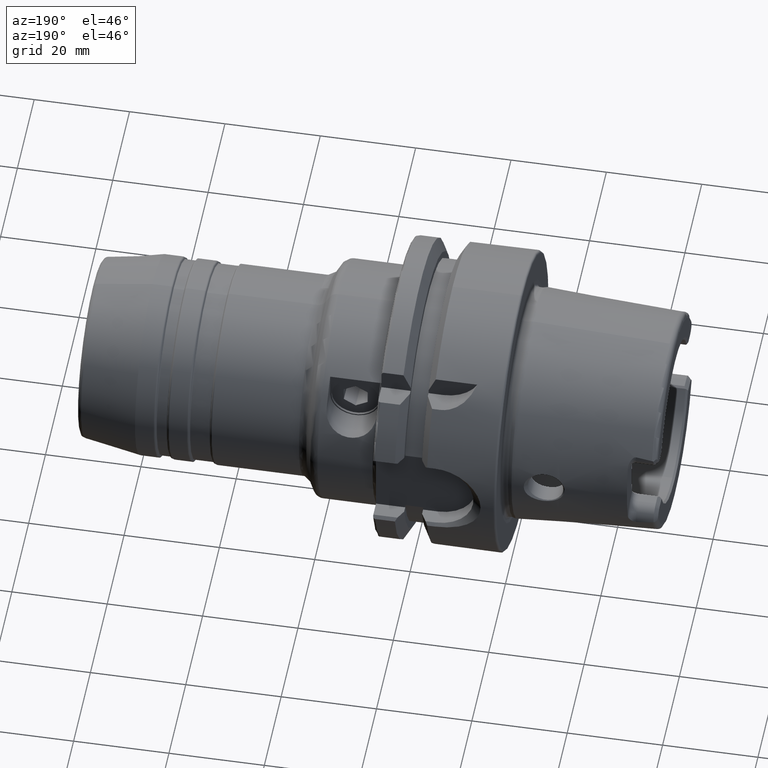
[diagram: clean part render]
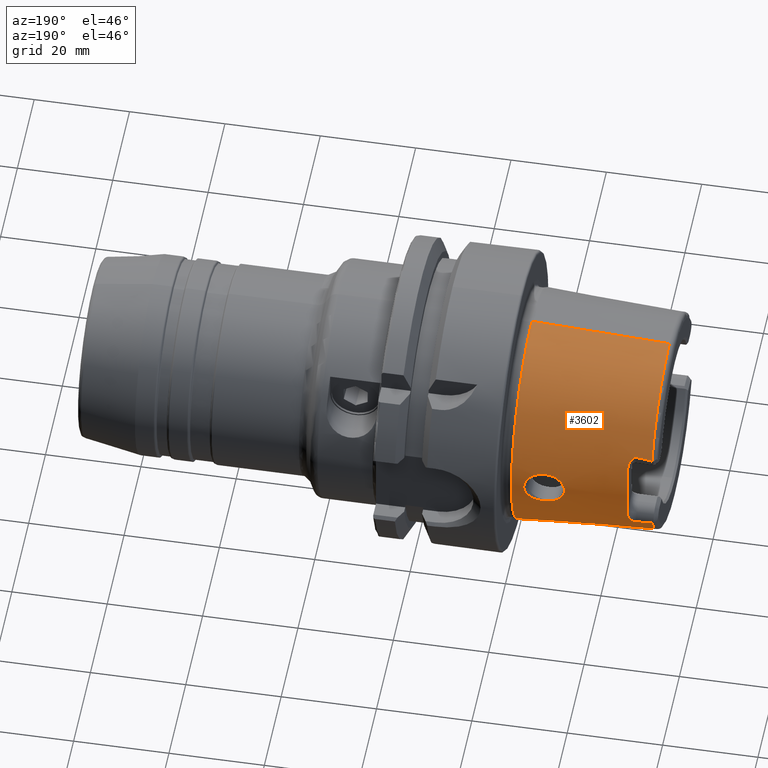
[diagram: same view with one face highlighted and labeled with its STEP entity id]
A machine part, auxiliary view. The second image highlights one B-rep face of the part: STEP entity #3602.
In plain terms, the highlighted conical surface has half-angle 2.868 deg.
Its self-contained STEP definition (entity closure, byte-faithful):
#2=CARTESIAN_POINT('',(-3.086004333271E1,0.E0,0.E0));
#3=DIRECTION('',(-1.E0,0.E0,0.E0));
#4=DIRECTION('',(0.E0,9.163649919573E-1,-4.003438540993E-1));
#5=AXIS2_PLACEMENT_3D('',#2,#3,#4);
#7=CARTESIAN_POINT('',(-2.000078966146E0,0.E0,0.E0));
#8=DIRECTION('',(-1.E0,0.E0,0.E0));
#9=DIRECTION('',(0.E0,0.E0,1.E0));
#10=AXIS2_PLACEMENT_3D('',#7,#8,#9);
#12=CARTESIAN_POINT('',(-3.086004333271E1,0.E0,0.E0));
#13=DIRECTION('',(-1.E0,0.E0,0.E0));
#14=DIRECTION('',(0.E0,0.E0,1.E0));
#15=AXIS2_PLACEMENT_3D('',#12,#13,#14);
#17=CARTESIAN_POINT('',(-3.086004333271E1,2.086981840766E1,9.117659021249E0));
#18=CARTESIAN_POINT('',(-3.053477016229E1,2.087026407252E1,9.157343468693E0));
#19=CARTESIAN_POINT('',(-2.990731725920E1,2.086951854295E1,9.237138009720E0));
#20=CARTESIAN_POINT('',(-2.903749175968E1,2.086333964170E1,9.358087934639E0));
#21=CARTESIAN_POINT('',(-2.823306039663E1,2.085177035668E1,9.481640423811E0));
#22=CARTESIAN_POINT('',(-2.773735868303E1,2.083999307163E1,9.567019157167E0));
#23=CARTESIAN_POINT('',(-2.75E1,2.083289994314E1,9.610781850025E0));
#25=CARTESIAN_POINT('',(-3.086004333271E1,2.086981840766E1,-9.117659021249E0));
#26=CARTESIAN_POINT('',(-3.053477016229E1,2.087026407252E1,-9.157343468693E0));
#27=CARTESIAN_POINT('',(-2.990731725920E1,2.086951854295E1,-9.237138009720E0));
#28=CARTESIAN_POINT('',(-2.903749175968E1,2.086333964170E1,-9.358087934639E0));
#29=CARTESIAN_POINT('',(-2.823306039663E1,2.085177035668E1,-9.481640423811E0));
#30=CARTESIAN_POINT('',(-2.773735868303E1,2.083999307163E1,-9.567019157167E0));
#31=CARTESIAN_POINT('',(-2.75E1,2.083289994314E1,-9.610781850025E0));
#33=CARTESIAN_POINT('',(-1.304439190524E1,2.366711362744E1,0.E0));
#34=CARTESIAN_POINT('',(-1.304439190524E1,2.366711362744E1,-2.692296203512E-1));
#35=CARTESIAN_POINT('',(-1.298596588633E1,2.366095548437E1,-7.915478808268E-1));
#36=CARTESIAN_POINT('',(-1.273593529021E1,2.363615494345E1,-1.538491121410E0));
#37=CARTESIAN_POINT('',(-1.234085581199E1,2.360161826823E1,-2.213541098239E0));
#38=CARTESIAN_POINT('',(-1.181419542757E1,2.356442533815E1,-2.805250832799E0));
#39=CARTESIAN_POINT('',(-1.117137997799E1,2.353291472613E1,-3.293080560877E0));
#40=CARTESIAN_POINT('',(-1.044411763446E1,2.351584278645E1,-3.653416998785E0));
#41=CARTESIAN_POINT('',(-9.665961713705E0,2.351947741575E1,-3.874611692795E0));
#42=CARTESIAN_POINT('',(-8.868249773196E0,2.354653765362E1,-3.954597009881E0));
#43=CARTESIAN_POINT('',(-8.066538054402E0,2.359739017255E1,-3.894486132971E0));
#44=CARTESIAN_POINT('',(-7.282895667530E0,2.366966238930E1,-3.694792672991E0));
#45=CARTESIAN_POINT('',(-6.526798753436E0,2.376050761714E1,-3.345491144455E0));
#46=CARTESIAN_POINT('',(-5.863814319433E0,2.385701628222E1,-2.868853306938E0));
#47=CARTESIAN_POINT('',(-5.312865344565E0,2.394874241525E1,-2.282242940895E0));
#48=CARTESIAN_POINT('',(-4.894562356430E0,2.402528280422E1,-1.608353345469E0));
#49=CARTESIAN_POINT('',(-4.618382192889E0,2.407904412959E1,-8.401112834544E-1));
#50=CARTESIAN_POINT('',(-4.550876813471E0,2.409262908457E1,-2.877835390342E-1));
#51=CARTESIAN_POINT('',(-4.550876813471E0,2.409262908457E1,0.E0));
#53=CARTESIAN_POINT('',(-4.550876813471E0,2.409262908457E1,0.E0));
#54=CARTESIAN_POINT('',(-4.550876813471E0,2.409262908457E1,2.859611557422E-1));
#55=CARTESIAN_POINT('',(-4.617596309412E0,2.407920413971E1,8.352613928779E-1));
#56=CARTESIAN_POINT('',(-4.890694973026E0,2.402602347294E1,1.599880277375E0));
#57=CARTESIAN_POINT('',(-5.306466792903E0,2.394987071124E1,2.273906799261E0));
#58=CARTESIAN_POINT('',(-5.856510230644E0,2.385815053501E1,2.862665496108E0));
#59=CARTESIAN_POINT('',(-6.521241332787E0,2.376122989035E1,3.342466827978E0));
#60=CARTESIAN_POINT('',(-7.278646414858E0,2.367010677752E1,3.693348295885E0));
#61=CARTESIAN_POINT('',(-8.062694821519E0,2.359768581097E1,3.893886174943E0));
#62=CARTESIAN_POINT('',(-8.864889034770E0,2.354669857096E1,3.954654604967E0));
#63=CARTESIAN_POINT('',(-9.662752662742E0,2.351953711749E1,3.875232791745E0));
#64=CARTESIAN_POINT('',(-1.044126794827E1,2.351581579089E1,3.654504198045E0));
#65=CARTESIAN_POINT('',(-1.116829063931E1,2.353280579750E1,3.294940241881E0));
#66=CARTESIAN_POINT('',(-1.181105545196E1,2.356423840462E1,2.808070161338E0));
#67=CARTESIAN_POINT('',(-1.233792159236E1,2.360138355943E1,2.217544614980E0));
#68=CARTESIAN_POINT('',(-1.273424784845E1,2.363599247778E1,1.542402709130E0));
#69=CARTESIAN_POINT('',(-1.298554429293E1,2.366091077517E1,7.941137450600E-1));
#70=CARTESIAN_POINT('',(-1.304439190524E1,2.366711362744E1,2.702086010916E-1));
#71=CARTESIAN_POINT('',(-1.304439190524E1,2.366711362744E1,0.E0));
#144=CARTESIAN_POINT('',(-2.75E1,2.083289994314E1,-9.610781850025E0));
#145=CARTESIAN_POINT('',(-2.743975062531E1,2.083109947580E1,-9.621890248698E0));
#146=CARTESIAN_POINT('',(-2.731974848713E1,2.083872619074E1,-9.619737940193E0));
#147=CARTESIAN_POINT('',(-2.713788283439E1,2.088499706769E1,-9.541042090458E0));
#148=CARTESIAN_POINT('',(-2.696734572208E1,2.095414112914E1,-9.409321527965E0));
#149=CARTESIAN_POINT('',(-2.680749153758E1,2.103583876480E1,-9.245355378728E0));
#150=CARTESIAN_POINT('',(-2.665257735252E1,2.112843537783E1,-9.051716021862E0));
#151=CARTESIAN_POINT('',(-2.650302698832E1,2.123047210424E1,-8.829512386182E0));
#152=CARTESIAN_POINT('',(-2.636248241751E1,2.133984318010E1,-8.581008391494E0));
#153=CARTESIAN_POINT('',(-2.623108108915E1,2.145913591165E1,-8.296954135832E0));
#154=CARTESIAN_POINT('',(-2.611489180659E1,2.158976731555E1,-7.968405102356E0));
#155=CARTESIAN_POINT('',(-2.602652288189E1,2.173158022596E1,-7.587530024420E0));
#156=CARTESIAN_POINT('',(-2.6E1,2.183164499938E1,-7.296342131266E0));
#157=CARTESIAN_POINT('',(-2.6E1,2.188224159781E1,-7.141305064401E0));
#173=CARTESIAN_POINT('',(-2.6E1,0.E0,0.E0));
#174=DIRECTION('',(1.E0,0.E0,0.E0));
#175=DIRECTION('',(0.E0,9.506556522061E-1,-3.102480151887E-1));
#176=AXIS2_PLACEMENT_3D('',#173,#174,#175);
#1477=DIRECTION('',(-9.987474310439E-1,-1.043943068730E-10,-5.003567710383E-2));
#1478=VECTOR('',#1477,2.889623723507E1);
#1479=CARTESIAN_POINT('',(-2.000000627352E0,3.013169918385E-9,
2.422041252602E1));
#1480=LINE('',#1479,#1478);
#1486=DIRECTION('',(-9.987474310439E-1,1.043954869385E-10,5.003567710383E-2));
#1487=VECTOR('',#1486,2.889623723507E1);
#1488=CARTESIAN_POINT('',(-2.000000627352E0,-3.013171862045E-9,
-2.422041252602E1));
#1489=LINE('',#1488,#1487);
#1645=CARTESIAN_POINT('',(-2.6E1,2.188224159781E1,7.141305064400E0));
#1646=CARTESIAN_POINT('',(-2.6E1,2.183974716074E1,7.271515653360E0));
#1647=CARTESIAN_POINT('',(-2.601871282871E1,2.175468164903E1,7.521324142367E0));
#1648=CARTESIAN_POINT('',(-2.608831272694E1,2.162788937119E1,7.867819964950E0));
#1649=CARTESIAN_POINT('',(-2.618560132166E1,2.150728532315E1,8.177555427085E0));
#1650=CARTESIAN_POINT('',(-2.630091098865E1,2.139363544444E1,8.454351951900E0));
#1651=CARTESIAN_POINT('',(-2.642777532615E1,2.128749113051E1,8.701079139516E0));
#1652=CARTESIAN_POINT('',(-2.656205230822E1,2.118893349758E1,8.920855574258E0));
#1653=CARTESIAN_POINT('',(-2.670233126283E1,2.109762227452E1,9.116811046229E0));
#1654=CARTESIAN_POINT('',(-2.684756686438E1,2.101419232942E1,9.289367907590E0));
#1655=CARTESIAN_POINT('',(-2.700261207520E1,2.093857757737E1,9.439508455813E0));
#1656=CARTESIAN_POINT('',(-2.716024259459E1,2.087834082786E1,9.552833408787E0));
#1657=CARTESIAN_POINT('',(-2.733041362146E1,2.083774391445E1,9.620584457154E0));
#1658=CARTESIAN_POINT('',(-2.744319606554E1,2.083120243791E1,9.621255000217E0));
#1659=CARTESIAN_POINT('',(-2.75E1,2.083289994314E1,9.610781850025E0));
#3030=CARTESIAN_POINT('',(-2.000078966146E0,0.E0,-2.422042115892E1));
#3031=CARTESIAN_POINT('',(-2.000078966146E0,0.E0,2.422042115892E1));
#3032=VERTEX_POINT('',#3030);
#3033=VERTEX_POINT('',#3031);
#3175=CARTESIAN_POINT('',(-2.6E1,2.188224159781E1,-7.141305064400E0));
#3177=VERTEX_POINT('',#3175);
#3179=CARTESIAN_POINT('',(-2.75E1,2.083289994314E1,-9.610781850025E0));
#3181=VERTEX_POINT('',#3179);
#3183=CARTESIAN_POINT('',(-2.75E1,2.083289994314E1,9.610781850025E0));
#3185=VERTEX_POINT('',#3183);
#3187=CARTESIAN_POINT('',(-2.6E1,2.188224159781E1,7.141305064400E0));
#3189=VERTEX_POINT('',#3187);
#3205=CARTESIAN_POINT('',(-3.086004333271E1,0.E0,-2.277456973022E1));
#3207=VERTEX_POINT('',#3205);
#3209=CARTESIAN_POINT('',(-3.086004333271E1,2.086981840766E1,
-9.117659021249E0));
#3210=VERTEX_POINT('',#3209);
#3211=CARTESIAN_POINT('',(-3.086004333271E1,0.E0,2.277456973022E1));
#3212=CARTESIAN_POINT('',(-3.086004333271E1,2.086981840766E1,9.117659021249E0));
#3213=VERTEX_POINT('',#3211);
#3214=VERTEX_POINT('',#3212);
#3293=VERTEX_POINT('',#33);
#3294=VERTEX_POINT('',#51);
#3569=CARTESIAN_POINT('',(-1.643002229390E1,0.E0,0.E0));
#3570=DIRECTION('',(1.E0,0.E0,0.E0));
#3571=DIRECTION('',(0.E0,0.E0,1.E0));
#3572=AXIS2_PLACEMENT_3D('',#3569,#3570,#3571);
#3573=CONICAL_SURFACE('',#3572,2.349749739118E1,2.86805556E0);
#3575=ORIENTED_EDGE('',*,*,#3574,.T.);
#3577=ORIENTED_EDGE('',*,*,#3576,.F.);
#3579=ORIENTED_EDGE('',*,*,#3578,.F.);
#3581=ORIENTED_EDGE('',*,*,#3580,.T.);
#3583=ORIENTED_EDGE('',*,*,#3582,.T.);
#3585=ORIENTED_EDGE('',*,*,#3584,.T.);
#3587=ORIENTED_EDGE('',*,*,#3586,.F.);
#3589=ORIENTED_EDGE('',*,*,#3588,.F.);
#3591=ORIENTED_EDGE('',*,*,#3590,.F.);
#3593=ORIENTED_EDGE('',*,*,#3592,.F.);
#3594=EDGE_LOOP('',(#3575,#3577,#3579,#3581,#3583,#3585,#3587,#3589,#3591,
#3593));
#3595=FACE_OUTER_BOUND('',#3594,.F.);
#3597=ORIENTED_EDGE('',*,*,#3596,.F.);
#3599=ORIENTED_EDGE('',*,*,#3598,.F.);
#3600=EDGE_LOOP('',(#3597,#3599));
#3601=FACE_BOUND('',#3600,.F.);
#3602=ADVANCED_FACE('',(#3595,#3601),#3573,.T.);
#6=CIRCLE('',#5,2.277456973022E1);
#11=CIRCLE('',#10,2.422042115892E1);
#16=CIRCLE('',#15,2.277456973022E1);
#24=B_SPLINE_CURVE_WITH_KNOTS('',3,(#17,#18,#19,#20,#21,#22,#23),.UNSPECIFIED.,
.F.,.F.,(4,1,1,1,4),(0.E0,2.5E-1,5.E-1,7.5E-1,1.E0),.UNSPECIFIED.);
#32=B_SPLINE_CURVE_WITH_KNOTS('',3,(#25,#26,#27,#28,#29,#30,#31),.UNSPECIFIED.,
.F.,.F.,(4,1,1,1,4),(0.E0,2.5E-1,5.E-1,7.5E-1,1.E0),.UNSPECIFIED.);
#52=B_SPLINE_CURVE_WITH_KNOTS('',3,(#33,#34,#35,#36,#37,#38,#39,#40,#41,#42,#43,
#44,#45,#46,#47,#48,#49,#50,#51),.UNSPECIFIED.,.F.,.F.,(4,1,1,1,1,1,1,1,1,1,1,1,
1,1,1,1,4),(0.E0,6.25E-2,1.25E-1,1.875E-1,2.5E-1,3.125E-1,3.75E-1,4.375E-1,
5.E-1,5.625E-1,6.25E-1,6.875E-1,7.5E-1,8.125E-1,8.75E-1,9.375E-1,1.E0),
.UNSPECIFIED.);
#72=B_SPLINE_CURVE_WITH_KNOTS('',3,(#53,#54,#55,#56,#57,#58,#59,#60,#61,#62,#63,
#64,#65,#66,#67,#68,#69,#70,#71),.UNSPECIFIED.,.F.,.F.,(4,1,1,1,1,1,1,1,1,1,1,1,
1,1,1,1,4),(0.E0,6.25E-2,1.25E-1,1.875E-1,2.5E-1,3.125E-1,3.75E-1,4.375E-1,
5.E-1,5.625E-1,6.25E-1,6.875E-1,7.5E-1,8.125E-1,8.75E-1,9.375E-1,1.E0),
.UNSPECIFIED.);
#158=B_SPLINE_CURVE_WITH_KNOTS('',3,(#144,#145,#146,#147,#148,#149,#150,#151,
#152,#153,#154,#155,#156,#157),.UNSPECIFIED.,.F.,.F.,(4,1,1,1,1,1,1,1,1,1,1,4),(
0.E0,9.090909090909E-2,1.818181818182E-1,2.727272727273E-1,3.636363636364E-1,
4.545454545455E-1,5.454545454545E-1,6.363636363636E-1,7.272727272727E-1,
8.181818181818E-1,9.090909090909E-1,1.E0),.UNSPECIFIED.);
#177=CIRCLE('',#176,2.301805237998E1);
#1660=B_SPLINE_CURVE_WITH_KNOTS('',3,(#1645,#1646,#1647,#1648,#1649,#1650,#1651,
#1652,#1653,#1654,#1655,#1656,#1657,#1658,#1659),.UNSPECIFIED.,.F.,.F.,(4,1,1,1,
1,1,1,1,1,1,1,1,4),(0.E0,8.333333333333E-2,1.666666666667E-1,2.5E-1,
3.333333333333E-1,4.166666666667E-1,5.E-1,5.833333333333E-1,6.666666666667E-1,
7.5E-1,8.333333333333E-1,9.166666666667E-1,1.E0),.UNSPECIFIED.);
#3574=EDGE_CURVE('',#3210,#3207,#6,.T.);
#3576=EDGE_CURVE('',#3032,#3207,#1489,.T.);
#3578=EDGE_CURVE('',#3033,#3032,#11,.T.);
#3580=EDGE_CURVE('',#3033,#3213,#1480,.T.);
#3582=EDGE_CURVE('',#3213,#3214,#16,.T.);
#3584=EDGE_CURVE('',#3214,#3185,#24,.T.);
#3586=EDGE_CURVE('',#3189,#3185,#1660,.T.);
#3588=EDGE_CURVE('',#3177,#3189,#177,.T.);
#3590=EDGE_CURVE('',#3181,#3177,#158,.T.);
#3592=EDGE_CURVE('',#3210,#3181,#32,.T.);
#3596=EDGE_CURVE('',#3293,#3294,#52,.T.);
#3598=EDGE_CURVE('',#3294,#3293,#72,.T.);